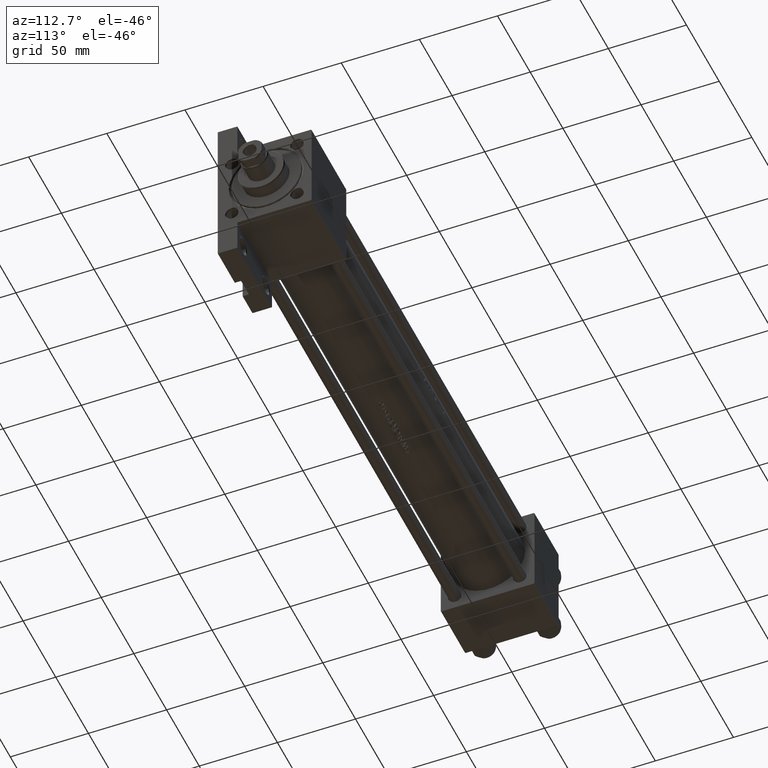
[diagram: clean part render]
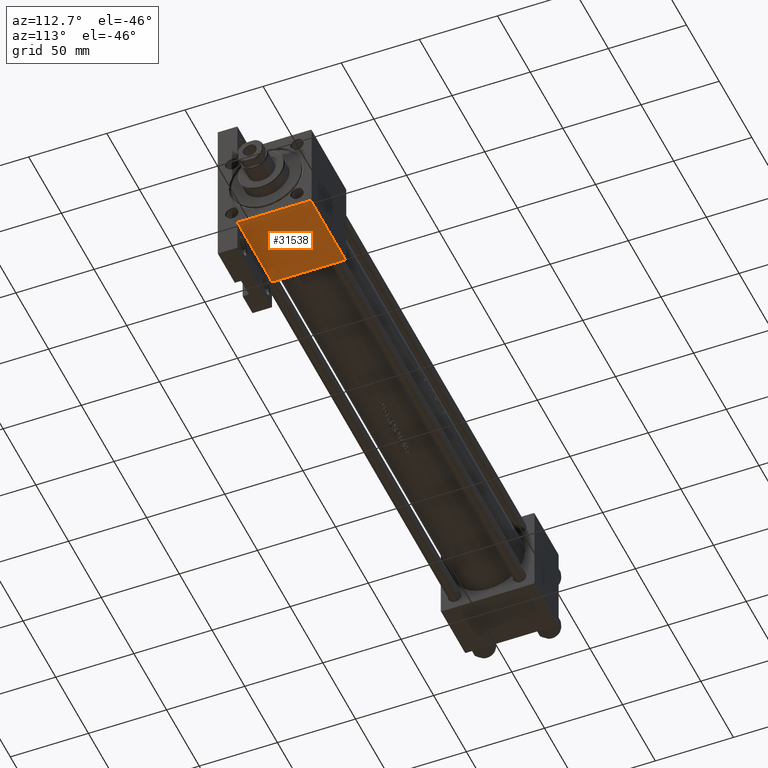
[diagram: same view with one face highlighted and labeled with its STEP entity id]
A machine part, auxiliary view. The second image highlights one B-rep face of the part: STEP entity #31538.
In plain terms, the highlighted planar face has unit normal (0, 0, -1).
Its self-contained STEP definition (entity closure, byte-faithful):
#1514 = DIRECTION ( 'NONE',  ( 1.000000000000000000, 0.000000000000000000, 0.000000000000000000 ) ) ;
#2281 = CARTESIAN_POINT ( 'NONE',  ( 324.9999999999999432, 30.00000000000000000, -17.49999999999998224 ) ) ;
#4609 = VECTOR ( 'NONE', #37781, 1000.000000000000000 ) ;
#6914 = DIRECTION ( 'NONE',  ( 0.000000000000000000, 0.000000000000000000, -1.000000000000000000 ) ) ;
#7297 = PLANE ( 'NONE',  #46228 ) ;
#8026 = DIRECTION ( 'NONE',  ( 0.000000000000000000, -0.000000000000000000, 1.000000000000000000 ) ) ;
#9650 = ORIENTED_EDGE ( 'NONE', *, *, #39317, .T. ) ;
#10744 = CARTESIAN_POINT ( 'NONE',  ( 377.9999999999999432, 30.00000000000000000, 30.00000000000000000 ) ) ;
#10791 = CARTESIAN_POINT ( 'NONE',  ( 377.9999999999999432, 30.00000000000000000, 29.49999999999994316 ) ) ;
#10792 = ORIENTED_EDGE ( 'NONE', *, *, #26317, .T. ) ;
#10859 = CARTESIAN_POINT ( 'NONE',  ( 324.9999999999999432, 30.00000000000000000, 30.00000000000000000 ) ) ;
#11485 = DIRECTION ( 'NONE',  ( -0.000000000000000000, 1.000000000000000000, 0.000000000000000000 ) ) ;
#12054 = DIRECTION ( 'NONE',  ( -1.000000000000000000, 1.178302738399341010E-15, -0.000000000000000000 ) ) ;
#12846 = EDGE_CURVE ( 'NONE', #34767, #28897, #26848, .T. ) ;
#15212 = VERTEX_POINT ( 'NONE', #10791 ) ;
#17714 = VECTOR ( 'NONE', #1514, 1000.000000000000000 ) ;
#18269 = ORIENTED_EDGE ( 'NONE', *, *, #25642, .F. ) ;
#19522 = CARTESIAN_POINT ( 'NONE',  ( 377.9999999999999432, 30.00000000000000000, 29.49999999999994316 ) ) ;
#22154 = VECTOR ( 'NONE', #12054, 1000.000000000000000 ) ;
#23612 = CARTESIAN_POINT ( 'NONE',  ( 324.9999999999999432, 30.00000000000000000, 29.49999999999994316 ) ) ;
#25642 = EDGE_CURVE ( 'NONE', #28265, #28897, #33768, .T. ) ;
#26317 = EDGE_CURVE ( 'NONE', #15212, #34767, #30159, .T. ) ;
#26848 = LINE ( 'NONE', #41857, #22154 ) ;
#26946 = CARTESIAN_POINT ( 'NONE',  ( 377.9999999999999432, 29.99999999999993605, -17.49999999999999645 ) ) ;
#28265 = VERTEX_POINT ( 'NONE', #23612 ) ;
#28897 = VERTEX_POINT ( 'NONE', #2281 ) ;
#29488 = FACE_OUTER_BOUND ( 'NONE', #43308, .T. ) ;
#30159 = LINE ( 'NONE', #34083, #4609 ) ;
#31538 = ADVANCED_FACE ( 'NONE', ( #29488 ), #7297, .T. ) ;
#33740 = VECTOR ( 'NONE', #6914, 1000.000000000000000 ) ;
#33768 = LINE ( 'NONE', #10859, #33740 ) ;
#34083 = CARTESIAN_POINT ( 'NONE',  ( 377.9999999999999432, 30.00000000000000000, 30.00000000000000000 ) ) ;
#34364 = ORIENTED_EDGE ( 'NONE', *, *, #12846, .T. ) ;
#34767 = VERTEX_POINT ( 'NONE', #26946 ) ;
#35510 = LINE ( 'NONE', #19522, #17714 ) ;
#37781 = DIRECTION ( 'NONE',  ( 0.000000000000000000, 0.000000000000000000, -1.000000000000000000 ) ) ;
#39317 = EDGE_CURVE ( 'NONE', #28265, #15212, #35510, .T. ) ;
#41857 = CARTESIAN_POINT ( 'NONE',  ( 324.9999999999999432, 30.00000000000000000, -17.49999999999999645 ) ) ;
#43308 = EDGE_LOOP ( 'NONE', ( #18269, #9650, #10792, #34364 ) ) ;
#46228 = AXIS2_PLACEMENT_3D ( 'NONE', #10744, #11485, #8026 ) ;